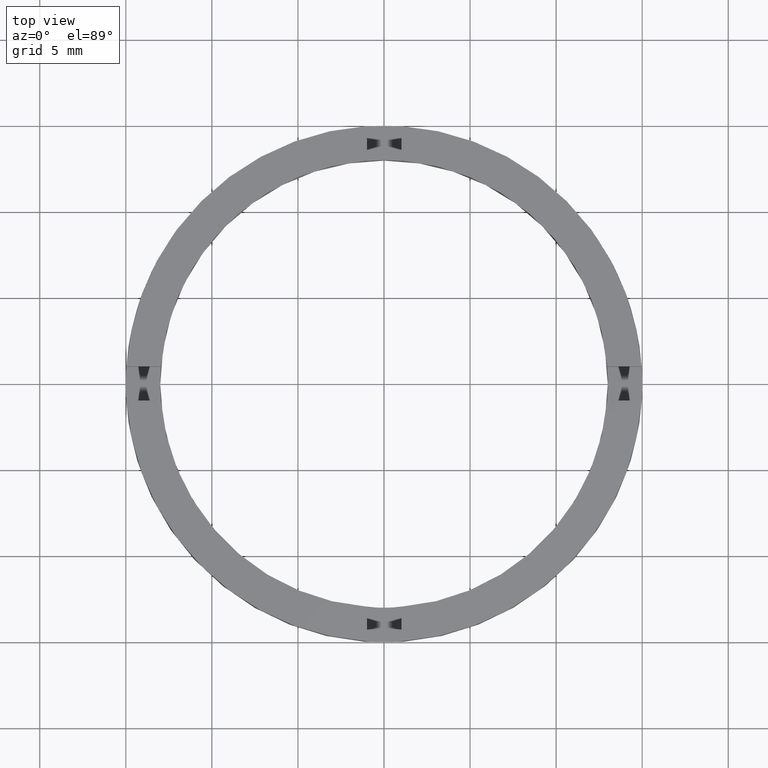
[diagram: clean part render]
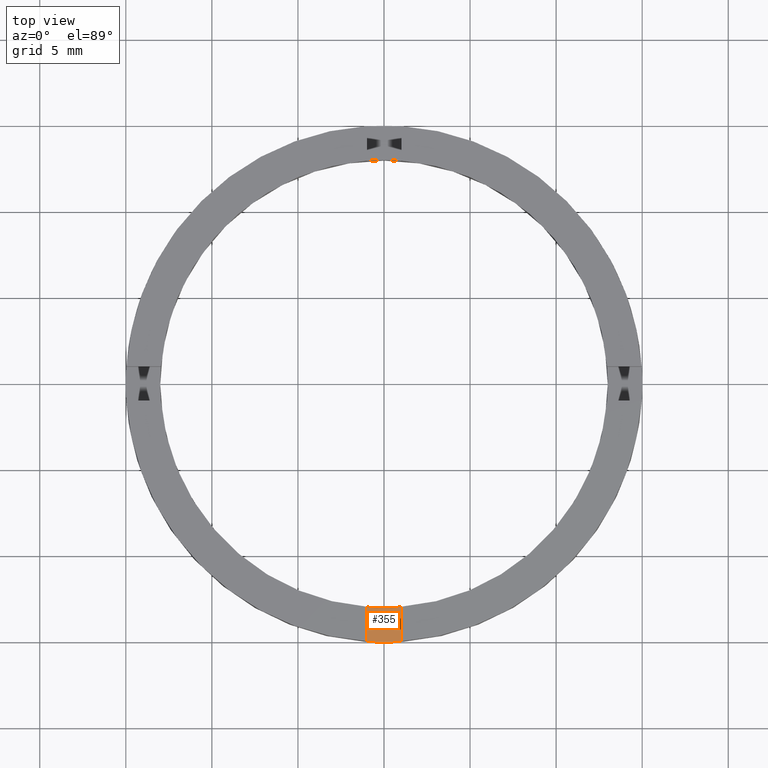
[diagram: same view with one face highlighted and labeled with its STEP entity id]
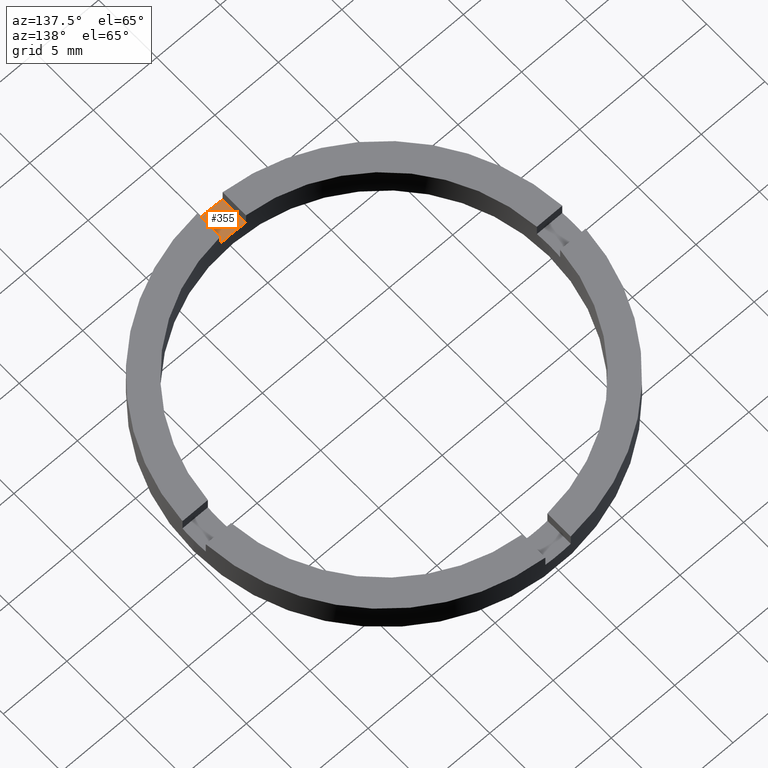
[diagram: same view with one face highlighted and labeled with its STEP entity id]
A machine part, top view. The second image highlights one B-rep face of the part: STEP entity #355.
A second angle (auxiliary view) of the same face is appended — the face is thin or edge-on in the first view.
In plain terms, the highlighted planar face has unit normal (-0, 0, 1).
Its self-contained STEP definition (entity closure, byte-faithful):
#6 = EDGE_CURVE ( 'NONE', #620, #517, #241, .T. ) ;
#25 = CARTESIAN_POINT ( 'NONE',  ( 0.000000000000000000, 0.000000000000000000, 1.500000000000000000 ) ) ;
#76 = DIRECTION ( 'NONE',  ( -0.000000000000000000, 0.000000000000000000, 1.000000000000000000 ) ) ;
#97 = ORIENTED_EDGE ( 'NONE', *, *, #6, .T. ) ;
#141 = PLANE ( 'NONE',  #624 ) ;
#178 = AXIS2_PLACEMENT_3D ( 'NONE', #387, #76, #279 ) ;
#190 = CARTESIAN_POINT ( 'NONE',  ( 0.9999999999998369082, -14.96662954709577775, 1.500000000000000000 ) ) ;
#240 = ORIENTED_EDGE ( 'NONE', *, *, #270, .T. ) ;
#241 = CIRCLE ( 'NONE', #319, 15.00000000000000000 ) ;
#254 = DIRECTION ( 'NONE',  ( 1.000000000000000000, 0.000000000000000000, 0.000000000000000000 ) ) ;
#267 = CARTESIAN_POINT ( 'NONE',  ( 0.000000000000000000, 0.000000000000000000, 1.500000000000000000 ) ) ;
#270 = EDGE_CURVE ( 'NONE', #517, #506, #718, .T. ) ;
#279 = DIRECTION ( 'NONE',  ( 1.000000000000000000, 0.000000000000000000, 0.000000000000000000 ) ) ;
#310 = DIRECTION ( 'NONE',  ( -0.000000000000000000, 0.000000000000000000, 1.000000000000000000 ) ) ;
#319 = AXIS2_PLACEMENT_3D ( 'NONE', #25, #522, #254 ) ;
#333 = ORIENTED_EDGE ( 'NONE', *, *, #775, .T. ) ;
#355 = ADVANCED_FACE ( 'NONE', ( #439 ), #141, .T. ) ;
#377 = CARTESIAN_POINT ( 'NONE',  ( -1.000000000000164313, -5.000000000000179412, 1.500000000000000000 ) ) ;
#387 = CARTESIAN_POINT ( 'NONE',  ( 0.000000000000000000, 0.000000000000000000, 1.500000000000000000 ) ) ;
#389 = VERTEX_POINT ( 'NONE', #491 ) ;
#407 = EDGE_LOOP ( 'NONE', ( #97, #240, #743, #333 ) ) ;
#413 = LINE ( 'NONE', #377, #665 ) ;
#424 = EDGE_CURVE ( 'NONE', #389, #506, #715, .T. ) ;
#439 = FACE_OUTER_BOUND ( 'NONE', #407, .T. ) ;
#441 = CARTESIAN_POINT ( 'NONE',  ( -1.000000000000162981, -14.96662954709575466, 1.500000000000000000 ) ) ;
#457 = VECTOR ( 'NONE', #778, 1000.000000000000000 ) ;
#491 = CARTESIAN_POINT ( 'NONE',  ( -1.000000000000163203, -12.96148139681570832, 1.500000000000000000 ) ) ;
#506 = VERTEX_POINT ( 'NONE', #556 ) ;
#517 = VERTEX_POINT ( 'NONE', #190 ) ;
#522 = DIRECTION ( 'NONE',  ( -0.000000000000000000, 0.000000000000000000, 1.000000000000000000 ) ) ;
#535 = DIRECTION ( 'NONE',  ( 1.301042606982605321E-16, -1.000000000000000000, 0.000000000000000000 ) ) ;
#556 = CARTESIAN_POINT ( 'NONE',  ( 0.9999999999998366862, -12.96148139681573497, 1.500000000000000000 ) ) ;
#620 = VERTEX_POINT ( 'NONE', #441 ) ;
#624 = AXIS2_PLACEMENT_3D ( 'NONE', #267, #310, #776 ) ;
#629 = CARTESIAN_POINT ( 'NONE',  ( 0.9999999999998356870, -5.000000000000179412, 1.500000000000000000 ) ) ;
#665 = VECTOR ( 'NONE', #535, 1000.000000000000000 ) ;
#715 = CIRCLE ( 'NONE', #178, 13.00000000000000178 ) ;
#718 = LINE ( 'NONE', #629, #457 ) ;
#743 = ORIENTED_EDGE ( 'NONE', *, *, #424, .F. ) ;
#775 = EDGE_CURVE ( 'NONE', #389, #620, #413, .T. ) ;
#776 = DIRECTION ( 'NONE',  ( 1.000000000000000000, 0.000000000000000000, 0.000000000000000000 ) ) ;
#778 = DIRECTION ( 'NONE',  ( -1.301042606982605321E-16, 1.000000000000000000, -0.000000000000000000 ) ) ;